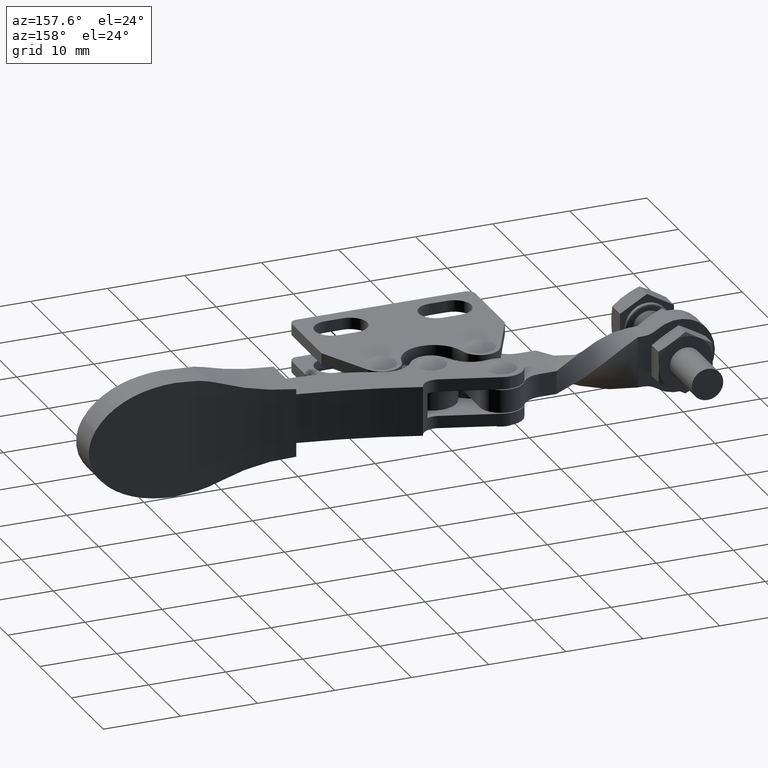
[diagram: clean part render]
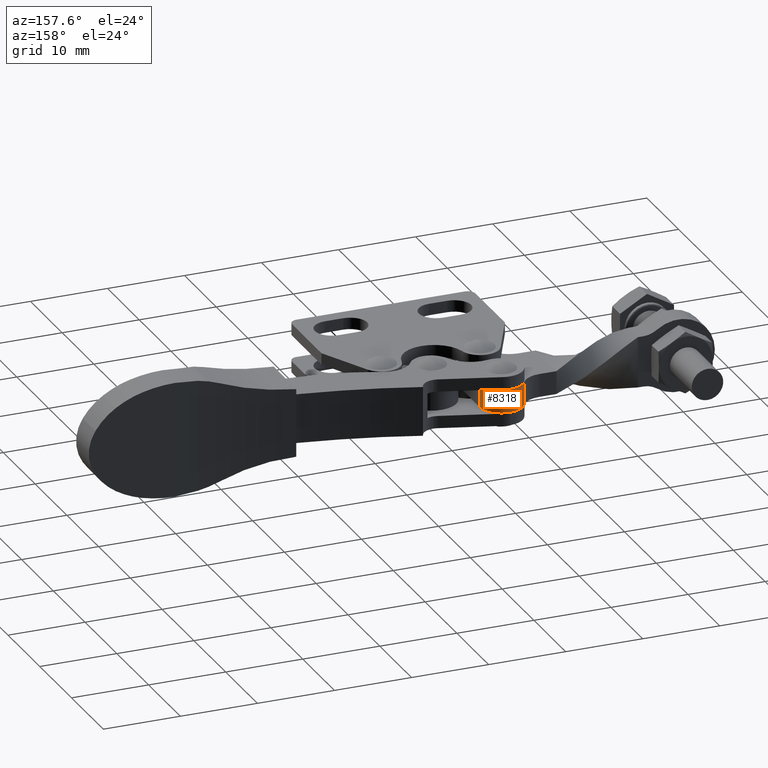
[diagram: same view with one face highlighted and labeled with its STEP entity id]
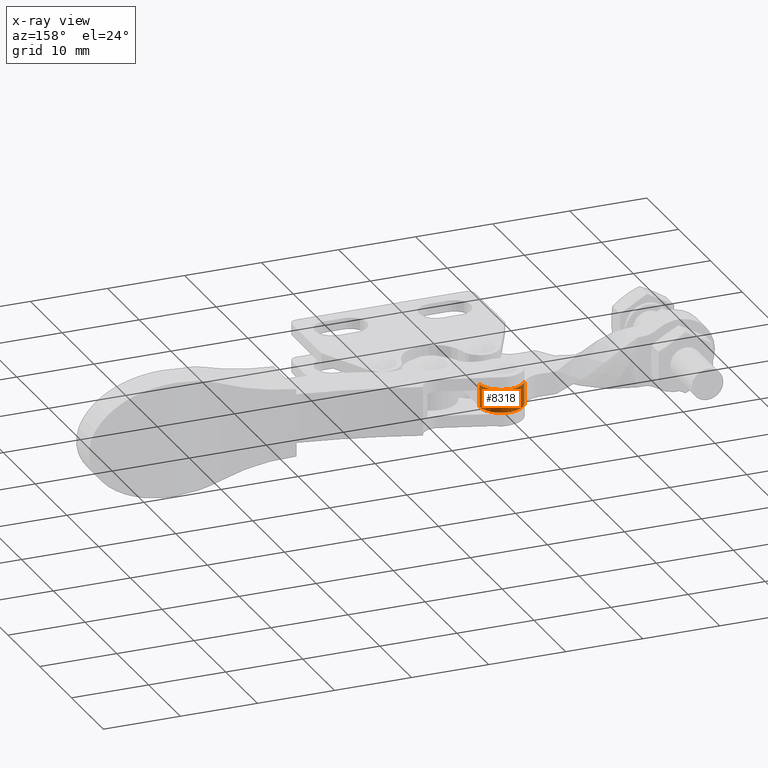
[diagram: x-ray of the same camera — body ghosted, the highlighted face saturated]
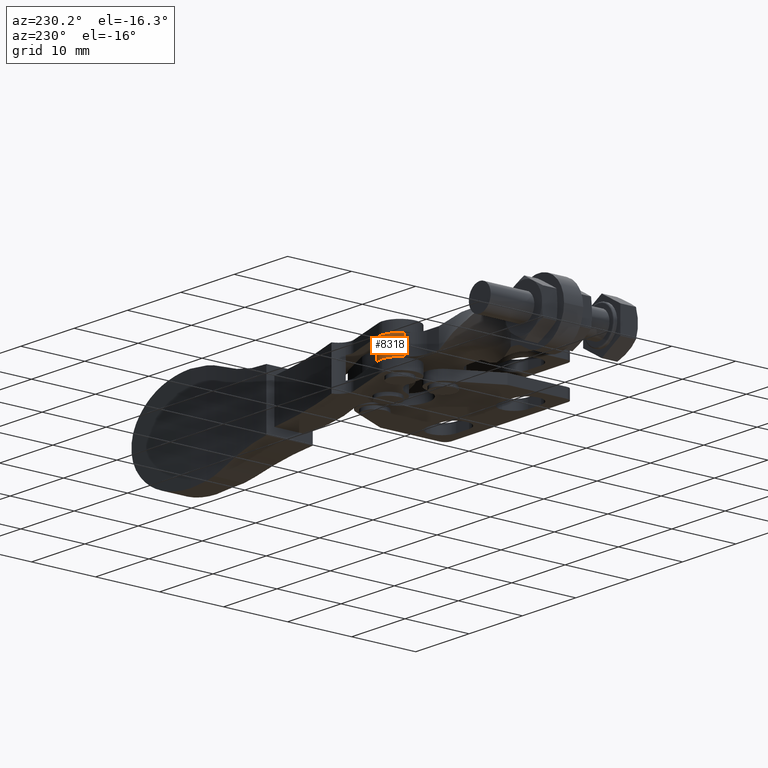
[diagram: same view with one face highlighted and labeled with its STEP entity id]
A machine part, auxiliary view. The second image highlights one B-rep face of the part: STEP entity #8318.
The next image is the same camera in x-ray: the body ghosted, the highlighted face saturated — about 0% of this face is hidden behind the body in this view.
A second angle (auxiliary view) of the same face is appended — the face is thin or edge-on in the first view.
In plain terms, the highlighted cylindrical surface (edge-blend (fillet) strip) has radius 2.8 mm, axis along (0, 0, -1).
Its self-contained STEP definition (entity closure, byte-faithful):
#73 = ORIENTED_EDGE ( 'NONE', *, *, #7036, .T. ) ;
#469 = LINE ( 'NONE', #6239, #8042 ) ;
#548 = FACE_OUTER_BOUND ( 'NONE', #8820, .T. ) ;
#578 = CARTESIAN_POINT ( 'NONE',  ( 8.299999999998700400, 14.50000000000090800, 0.0000000000000000000 ) ) ;
#693 = ORIENTED_EDGE ( 'NONE', *, *, #1672, .T. ) ;
#800 = CARTESIAN_POINT ( 'NONE',  ( 5.499999999998762800, 14.50000000000084700, -3.000000000000000900 ) ) ;
#889 = DIRECTION ( 'NONE',  ( -2.478176394252564400E-015, 1.000000000000000000, 0.0000000000000000000 ) ) ;
#1186 = CARTESIAN_POINT ( 'NONE',  ( 3.089226026066583600, 15.92413793103536400, -3.000000000000000000 ) ) ;
#1241 = CARTESIAN_POINT ( 'NONE',  ( 3.089226026066666600, 15.92413793103537500, 0.0000000000000000000 ) ) ;
#1321 = CIRCLE ( 'NONE', #8903, 2.800000000000019400 ) ;
#1349 = CYLINDRICAL_SURFACE ( 'NONE', #8623, 2.800000000000018500 ) ;
#1453 = VERTEX_POINT ( 'NONE', #1186 ) ;
#1614 = AXIS2_PLACEMENT_3D ( 'NONE', #6694, #3874, #889 ) ;
#1672 = EDGE_CURVE ( 'NONE', #5523, #1453, #1321, .T. ) ;
#2004 = VECTOR ( 'NONE', #7481, 1000.000000000000000 ) ;
#2084 = CARTESIAN_POINT ( 'NONE',  ( 5.499999999998759200, 14.50000000000084700, -4.336808689942017700E-016 ) ) ;
#2939 = LINE ( 'NONE', #8890, #2004 ) ;
#2958 = VERTEX_POINT ( 'NONE', #578 ) ;
#3398 = VERTEX_POINT ( 'NONE', #1241 ) ;
#3562 = DIRECTION ( 'NONE',  ( -1.000000000000000000, -6.195440985631412900E-016, -1.995021649841021300E-021 ) ) ;
#3774 = EDGE_CURVE ( 'NONE', #2958, #3398, #5537, .T. ) ;
#3874 = DIRECTION ( 'NONE',  ( -1.995021649832065000E-021, -0.0000000000000000000, 1.000000000000000000 ) ) ;
#3962 = DIRECTION ( 'NONE',  ( -1.995021649832065000E-021, -0.0000000000000000000, 1.000000000000000000 ) ) ;
#4061 = CARTESIAN_POINT ( 'NONE',  ( 8.299999999998572500, 14.50000000000095400, -3.000000000000000400 ) ) ;
#4733 = EDGE_CURVE ( 'NONE', #3398, #1453, #2939, .T. ) ;
#4904 = ORIENTED_EDGE ( 'NONE', *, *, #3774, .F. ) ;
#4918 = ORIENTED_EDGE ( 'NONE', *, *, #4733, .F. ) ;
#5523 = VERTEX_POINT ( 'NONE', #4061 ) ;
#5537 = CIRCLE ( 'NONE', #1614, 2.800000000000019400 ) ;
#6239 = CARTESIAN_POINT ( 'NONE',  ( 8.299999999998783900, 14.50000000000084600, -1.500000000000000000 ) ) ;
#6694 = CARTESIAN_POINT ( 'NONE',  ( 5.499999999998759200, 14.50000000000084700, -4.336808689942017700E-016 ) ) ;
#6989 = DIRECTION ( 'NONE',  ( -1.339442867149536000E-014, -2.109423746787797400E-015, -1.000000000000000000 ) ) ;
#7036 = EDGE_CURVE ( 'NONE', #2958, #5523, #469, .T. ) ;
#7153 = DIRECTION ( 'NONE',  ( -6.195440985631410900E-016, 1.000000000000000000, 0.0000000000000000000 ) ) ;
#7481 = DIRECTION ( 'NONE',  ( -5.502779209493937800E-014, -6.605826996519681400E-015, -1.000000000000000000 ) ) ;
#8042 = VECTOR ( 'NONE', #6989, 1000.000000000000000 ) ;
#8318 = ADVANCED_FACE ( 'NONE', ( #548 ), #1349, .T. ) ;
#8623 = AXIS2_PLACEMENT_3D ( 'NONE', #2084, #8703, #3562 ) ;
#8703 = DIRECTION ( 'NONE',  ( 1.995021649832065000E-021, 0.0000000000000000000, -1.000000000000000000 ) ) ;
#8820 = EDGE_LOOP ( 'NONE', ( #693, #4918, #4904, #73 ) ) ;
#8890 = CARTESIAN_POINT ( 'NONE',  ( 3.089226026066642200, 15.92413793103538900, -1.499999999999995300 ) ) ;
#8903 = AXIS2_PLACEMENT_3D ( 'NONE', #800, #3962, #7153 ) ;